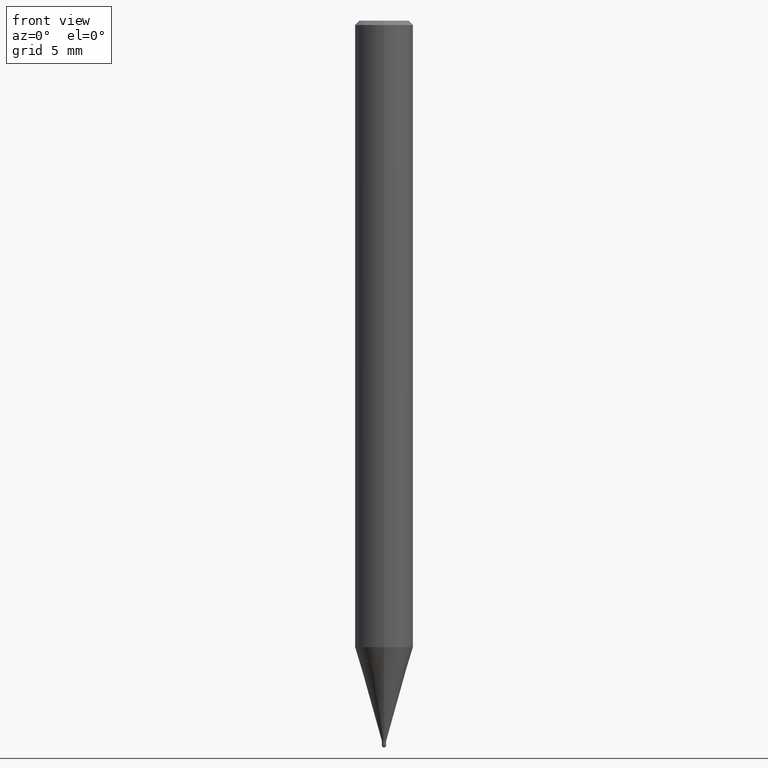
[diagram: clean part render]
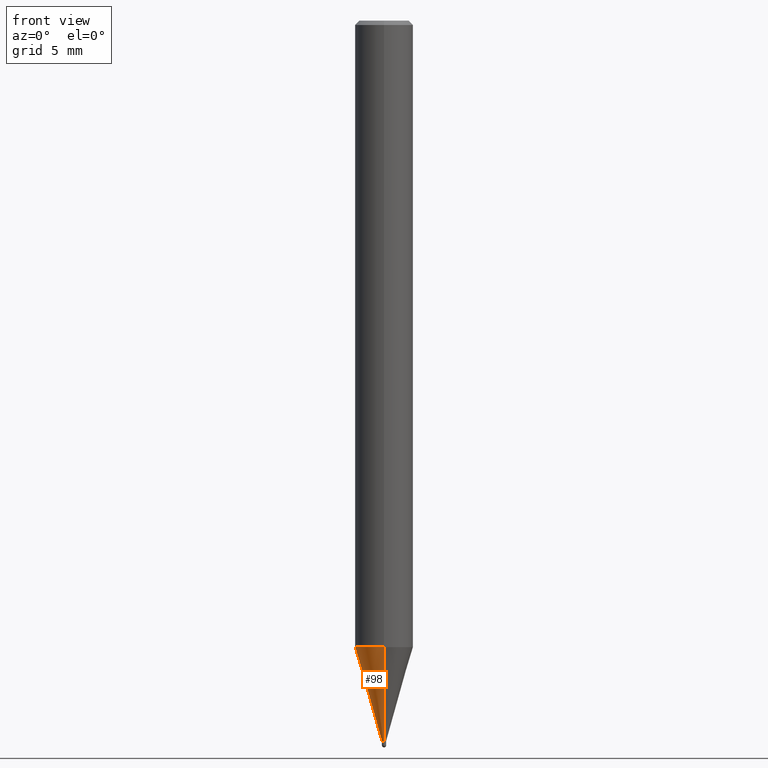
[diagram: same view with one face highlighted and labeled with its STEP entity id]
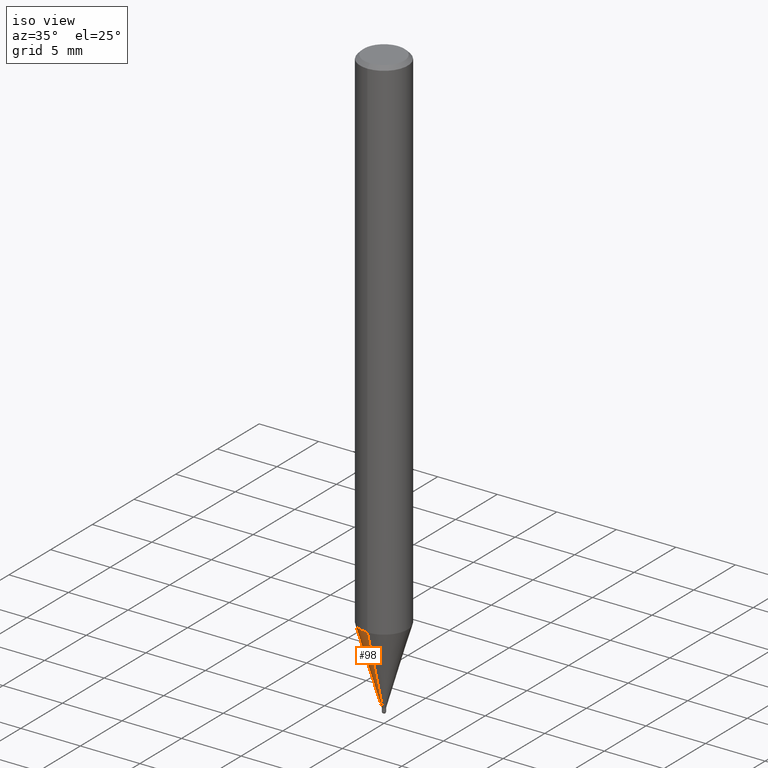
[diagram: same view with one face highlighted and labeled with its STEP entity id]
A machine part, front view. The second image highlights one B-rep face of the part: STEP entity #98.
A second angle (iso view) of the same face is appended — the face is thin or edge-on in the first view.
In plain terms, the highlighted conical surface has half-angle 15.999 deg.
Its self-contained STEP definition (entity closure, byte-faithful):
#92=EDGE_CURVE('',#110,#160,#217,.T.);
#98=ADVANCED_FACE('',(#223),#224,.T.);
#110=VERTEX_POINT('',#238);
#112=VERTEX_POINT('',#240);
#118=EDGE_CURVE('',#112,#162,#247,.T.);
#134=EDGE_CURVE('',#162,#110,#266,.T.);
#160=VERTEX_POINT('',#297);
#162=VERTEX_POINT('',#299);
#178=EDGE_CURVE('',#112,#160,#317,.T.);
#217=LINE('',#353,#354);
#223=FACE_OUTER_BOUND('',#360,.T.);
#224=CONICAL_SURFACE('',#361,1.07495,0.279241047070178);
#238=CARTESIAN_POINT('',(0.0,1.99995,-43.098));
#240=CARTESIAN_POINT('',(1.83629722755666E-017,-0.14995,-49.55));
#247=LINE('',#387,#388);
#266=CIRCLE('',#414,1.99995);
#297=CARTESIAN_POINT('',(0.0,0.14995,-49.55));
#299=CARTESIAN_POINT('',(2.44915147732706E-016,-1.99995,-43.098));
#317=CIRCLE('',#475,0.14995);
#353=CARTESIAN_POINT('',(-1.31639060004136E-016,1.07495,-46.324));
#354=VECTOR('',#497,1.0);
#360=EDGE_LOOP('',(#499,#500,#501,#502));
#361=AXIS2_PLACEMENT_3D('',#503,#504,#505);
#387=CARTESIAN_POINT('',(1.31639060004136E-016,-1.07495,-46.324));
#388=VECTOR('',#530,1.0);
#414=AXIS2_PLACEMENT_3D('',#563,#564,#565);
#475=AXIS2_PLACEMENT_3D('',#632,#633,#634);
#497=DIRECTION('',(3.37533562982631E-017,-0.275626173201767,-0.961264902431244));
#499=ORIENTED_EDGE('',*,*,#92,.T.);
#500=ORIENTED_EDGE('',*,*,#178,.F.);
#501=ORIENTED_EDGE('',*,*,#118,.T.);
#502=ORIENTED_EDGE('',*,*,#134,.T.);
#503=CARTESIAN_POINT('',(0.0,0.0,-46.324));
#504=DIRECTION('',(-0.0,-0.0,1.0));
#505=DIRECTION('',(0.0,1.0,0.0));
#530=DIRECTION('',(3.37533562982631E-017,-0.275626173201767,0.961264902431244));
#563=CARTESIAN_POINT('',(0.0,0.0,-43.098));
#564=DIRECTION('',(0.0,0.0,-1.0));
#565=DIRECTION('',(0.0,1.0,0.0));
#632=CARTESIAN_POINT('',(0.0,0.0,-49.55));
#633=DIRECTION('',(0.0,0.0,-1.0));
#634=DIRECTION('',(0.0,1.0,0.0));